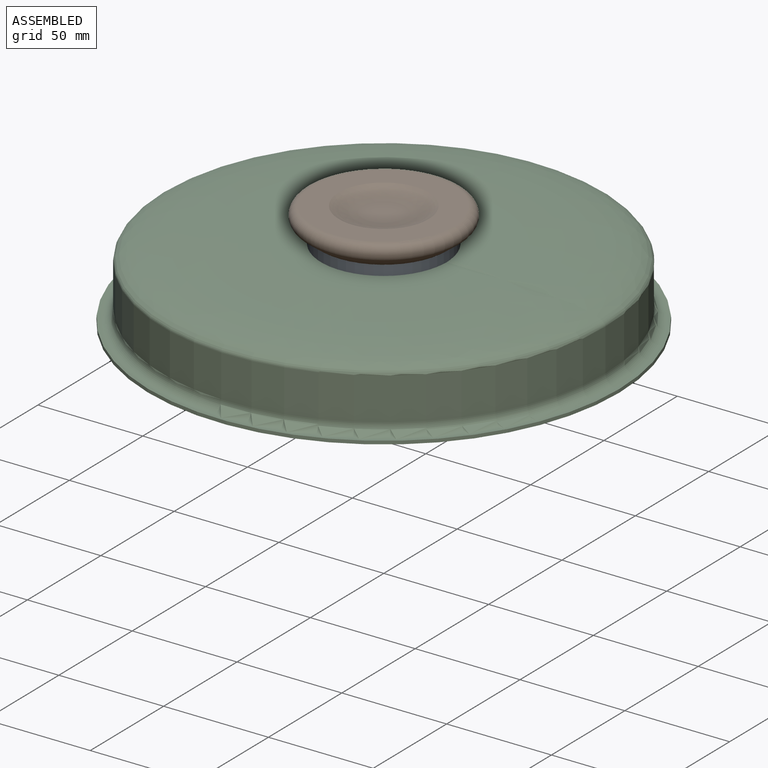
[diagram: assembled view]
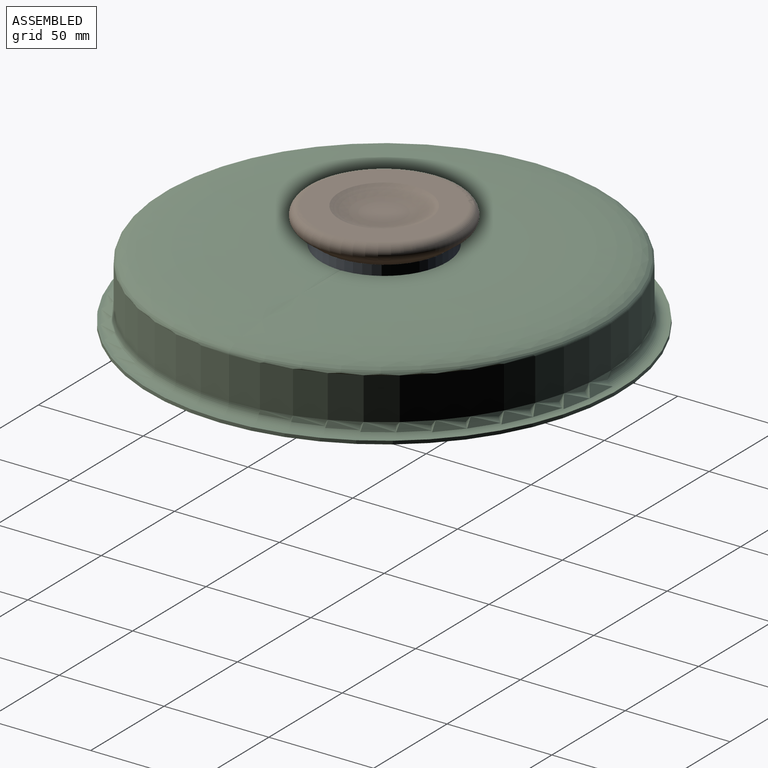
[diagram: assembled view, second angle]
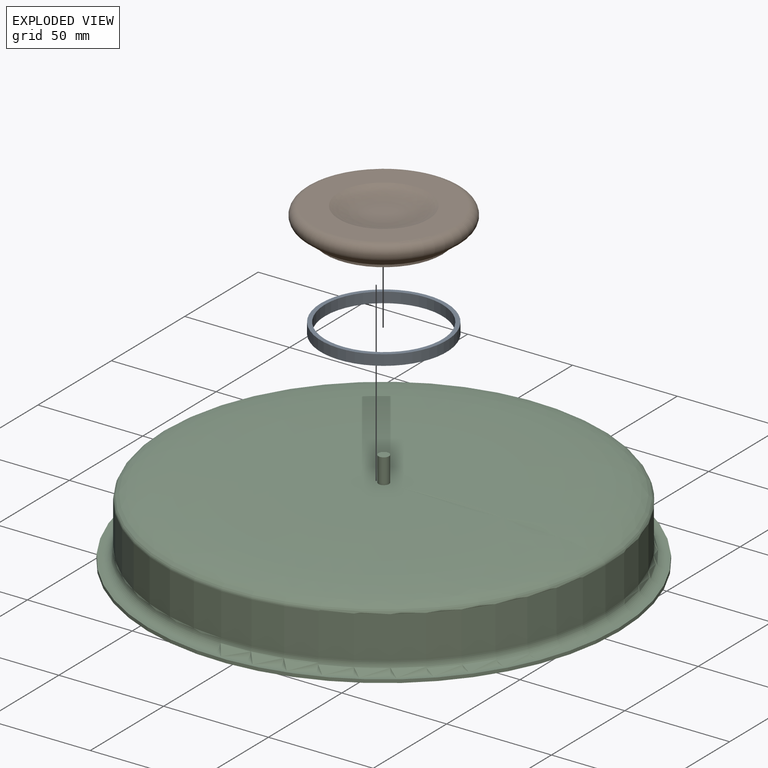
[diagram: exploded view]
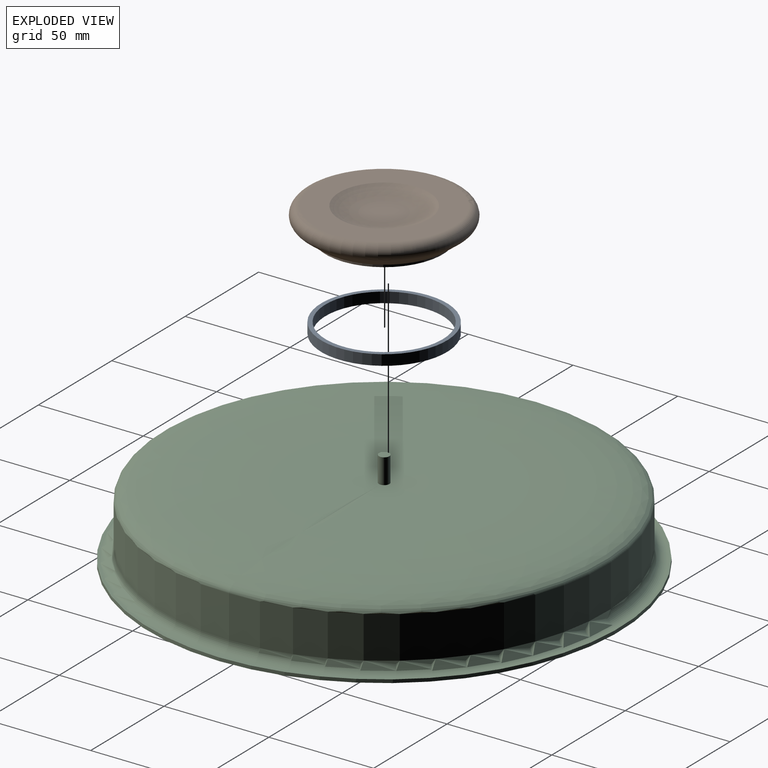
[diagram: exploded view, second angle]
ASSEMBLY  parts=3 mates=2
PART A: 4 faces, bbox 60x60x5 mm
  f0: cylinder r=28mm len=56mm, axis (0,0,-1), area 879.6mm2, adj f1,f3
  f1: plane 60x60mm, normal (0,0,-1), area 364.4mm2, adj f0,f2
  f2: cylinder r=30mm len=60mm, axis (0,0,-1), area 942.5mm2, adj f1,f3
  f3: plane 60x60mm, normal (0,0,1), area 364.4mm2, adj f0,f2
PART B: 10 faces, bbox 80.7x80.7x13.5 mm
  f0: cylinder r=28mm len=56mm, axis (0,0,-1), area 351.9mm2, adj f1,f9
  f1: plane 60x60mm, normal (0,0,-1), area 364.4mm2, adj f0,f2
  f2: cone r=35.67mm half-angle=52.9deg, axis (0,0,1), area 1465.6mm2, adj f1,f3
  f3: torus R=33.26mm, axis (0,0,-1), area 2300.6mm2, adj f2,f4
  f4: plane 66.18x66.18mm, normal (0,0,1), area 1995.3mm2, adj f3,f5
  f5: revolved ~42.89x42.89mm, area 1173.9mm2, adj f4,f6
  f6: plane 20.19x20.19mm, normal (0,0,1), area 320mm2, adj f5
  f7: plane 5x5mm, normal (0,0,-1), area 19.6mm2, adj f8
  f8: cylinder r=2.5mm len=7.16mm, axis (0,0,-1), area 112.4mm2, adj f7,f9
  f9: plane 56x56mm, normal (0,0,-1), area 2443.4mm2, adj f0,f8
PART C: 11 faces, bbox 247.4x247.4x46.3 mm
  f0: revolved ~211.51x211.51mm, area 36337mm2, adj f1,f10
  f1: cylinder r=2.5mm len=11.98mm, axis (0,0,1), area 188.1mm2, adj f0,f2
  f2: plane 5x5mm, normal (0,0,1), area 19.6mm2, adj f1
  f3: revolved ~205.51x205.51mm, area 33560.5mm2, adj f4
  f4: cylinder r=102.75mm len=205.51mm, axis (0,0,1), area 13661.3mm2, adj f3,f5
  f5: torus R=107.75mm, axis (0,0,1), area 5323.5mm2, adj f4,f6
  f6: cone r=112.38mm half-angle=87.2deg, axis (0,0,1), area 3038.1mm2, adj f5,f7
  f7: cone r=112.38mm half-angle=2.8deg, axis (0,0,-1), area 1090.8mm2, adj f6,f8
  f8: cone r=112.3mm half-angle=87.2deg, axis (0,0,1), area 919.3mm2, adj f7,f9
  f9: torus R=110.75mm, axis (0,0,1), area 5476.1mm2, adj f8,f10
  f10: cylinder r=105.75mm len=211.51mm, axis (0,0,1), area 13394.8mm2, adj f0,f9
PLACE A t=(0,0,359.08)mm
PLACE B t=(0,0,358.12)mm
PLACE C t=(0.28,0,359.52)mm
MATE fastened A.f0 <-> B.f0  axis (0,0,1) through (0,0,458.36)mm
MATE fastened C.f1 <-> B.f0  axis (0,0,1) through (0,0,453.36)mm
